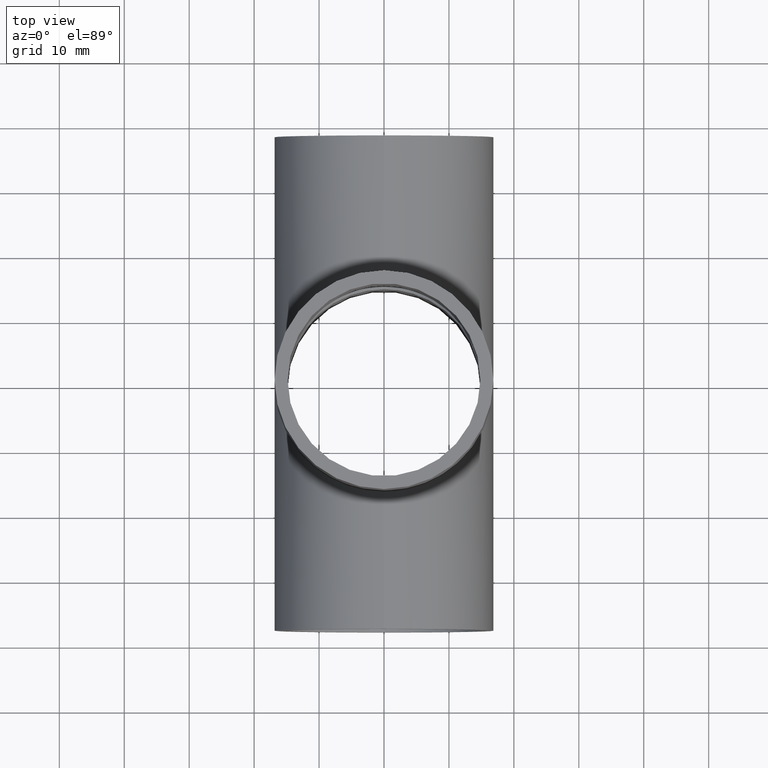
[diagram: clean part render]
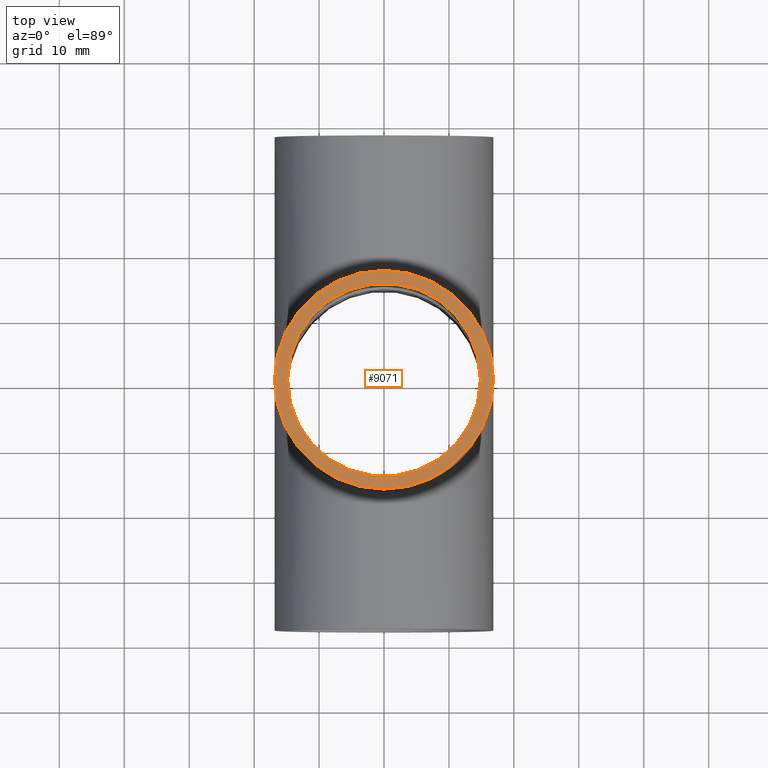
[diagram: same view with one face highlighted and labeled with its STEP entity id]
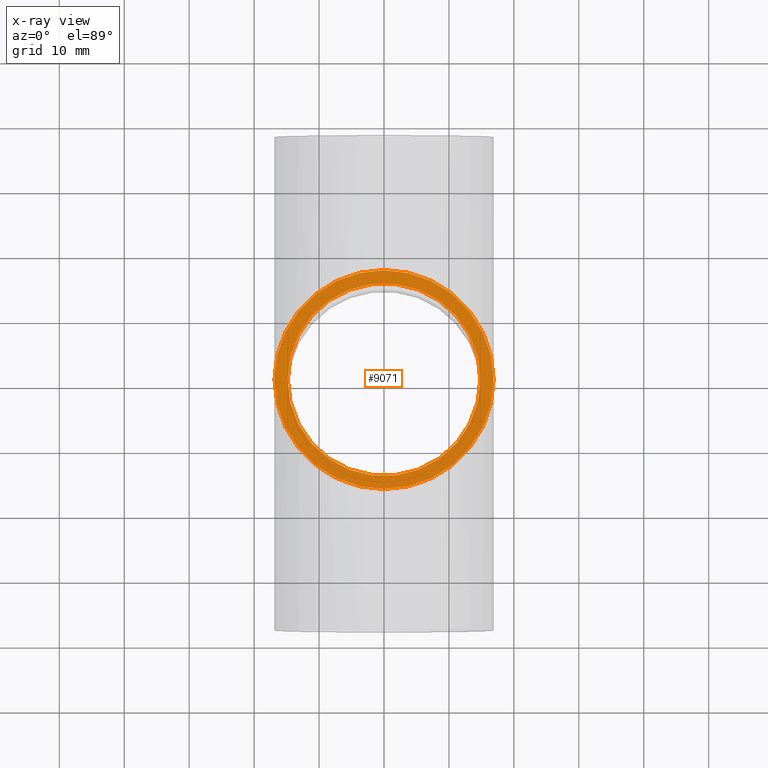
[diagram: x-ray of the same camera — body ghosted, the highlighted face saturated]
A machine part, top view. The second image highlights one B-rep face of the part: STEP entity #9071.
The next image is the same camera in x-ray: the body ghosted, the highlighted face saturated — about 0% of this face is hidden behind the body in this view.
In plain terms, the highlighted planar face has unit normal (0, 0, 1).
Its self-contained STEP definition (entity closure, byte-faithful):
#148 = CIRCLE ( 'NONE', #9578, 16.85000000000000500 ) ;
#297 = DIRECTION ( 'NONE',  ( 0.0000000000000000000, 0.0000000000000000000, 1.000000000000000000 ) ) ;
#457 = DIRECTION ( 'NONE',  ( 0.0000000000000000000, 0.0000000000000000000, 1.000000000000000000 ) ) ;
#516 = CIRCLE ( 'NONE', #4155, 14.85000000000000300 ) ;
#830 = CIRCLE ( 'NONE', #7921, 16.85000000000000500 ) ;
#879 = VERTEX_POINT ( 'NONE', #10998 ) ;
#894 = CARTESIAN_POINT ( 'NONE',  ( 0.0000000000000000000, 0.0000000000000000000, 38.00000000000000000 ) ) ;
#1269 = ORIENTED_EDGE ( 'NONE', *, *, #6943, .F. ) ;
#1790 = DIRECTION ( 'NONE',  ( 1.000000000000000000, 0.0000000000000000000, 0.0000000000000000000 ) ) ;
#1810 = DIRECTION ( 'NONE',  ( 0.0000000000000000000, 0.0000000000000000000, 1.000000000000000000 ) ) ;
#1913 = CIRCLE ( 'NONE', #6270, 14.85000000000000300 ) ;
#2000 = FACE_BOUND ( 'NONE', #6773, .T. ) ;
#2352 = CARTESIAN_POINT ( 'NONE',  ( 16.85000000000000500, 2.063529856563290600E-015, 38.00000000000000000 ) ) ;
#2898 = VERTEX_POINT ( 'NONE', #2352 ) ;
#3055 = CARTESIAN_POINT ( 'NONE',  ( 0.0000000000000000000, 0.0000000000000000000, 38.00000000000000000 ) ) ;
#3507 = AXIS2_PLACEMENT_3D ( 'NONE', #3055, #457, #6536 ) ;
#3801 = DIRECTION ( 'NONE',  ( 0.0000000000000000000, 0.0000000000000000000, 1.000000000000000000 ) ) ;
#3899 = EDGE_CURVE ( 'NONE', #2898, #5781, #148, .T. ) ;
#3914 = PLANE ( 'NONE',  #3507 ) ;
#4036 = FACE_OUTER_BOUND ( 'NONE', #10157, .T. ) ;
#4155 = AXIS2_PLACEMENT_3D ( 'NONE', #6993, #1810, #7856 ) ;
#4217 = VERTEX_POINT ( 'NONE', #6859 ) ;
#4325 = ORIENTED_EDGE ( 'NONE', *, *, #7972, .F. ) ;
#4858 = EDGE_CURVE ( 'NONE', #5781, #2898, #830, .T. ) ;
#4984 = ORIENTED_EDGE ( 'NONE', *, *, #3899, .T. ) ;
#5505 = CARTESIAN_POINT ( 'NONE',  ( 0.0000000000000000000, 0.0000000000000000000, 38.00000000000000000 ) ) ;
#5781 = VERTEX_POINT ( 'NONE', #6126 ) ;
#6126 = CARTESIAN_POINT ( 'NONE',  ( -16.85000000000000500, 0.0000000000000000000, 38.00000000000000000 ) ) ;
#6270 = AXIS2_PLACEMENT_3D ( 'NONE', #894, #6974, #1790 ) ;
#6373 = DIRECTION ( 'NONE',  ( 1.000000000000000000, 0.0000000000000000000, 0.0000000000000000000 ) ) ;
#6536 = DIRECTION ( 'NONE',  ( 1.000000000000000000, 0.0000000000000000000, -0.0000000000000000000 ) ) ;
#6773 = EDGE_LOOP ( 'NONE', ( #1269, #4325 ) ) ;
#6859 = CARTESIAN_POINT ( 'NONE',  ( -14.85000000000000300, 0.0000000000000000000, 38.00000000000000000 ) ) ;
#6943 = EDGE_CURVE ( 'NONE', #4217, #879, #1913, .T. ) ;
#6974 = DIRECTION ( 'NONE',  ( 0.0000000000000000000, 0.0000000000000000000, 1.000000000000000000 ) ) ;
#6993 = CARTESIAN_POINT ( 'NONE',  ( 0.0000000000000000000, 0.0000000000000000000, 38.00000000000000000 ) ) ;
#7856 = DIRECTION ( 'NONE',  ( 1.000000000000000000, 0.0000000000000000000, 0.0000000000000000000 ) ) ;
#7921 = AXIS2_PLACEMENT_3D ( 'NONE', #9032, #3801, #9897 ) ;
#7972 = EDGE_CURVE ( 'NONE', #879, #4217, #516, .T. ) ;
#9032 = CARTESIAN_POINT ( 'NONE',  ( 0.0000000000000000000, 0.0000000000000000000, 38.00000000000000000 ) ) ;
#9071 = ADVANCED_FACE ( 'NONE', ( #2000, #4036 ), #3914, .T. ) ;
#9144 = ORIENTED_EDGE ( 'NONE', *, *, #4858, .T. ) ;
#9578 = AXIS2_PLACEMENT_3D ( 'NONE', #5505, #297, #6373 ) ;
#9897 = DIRECTION ( 'NONE',  ( 1.000000000000000000, 0.0000000000000000000, 0.0000000000000000000 ) ) ;
#10157 = EDGE_LOOP ( 'NONE', ( #9144, #4984 ) ) ;
#10998 = CARTESIAN_POINT ( 'NONE',  ( 14.85000000000000300, 1.818600496733819900E-015, 38.00000000000000000 ) ) ;